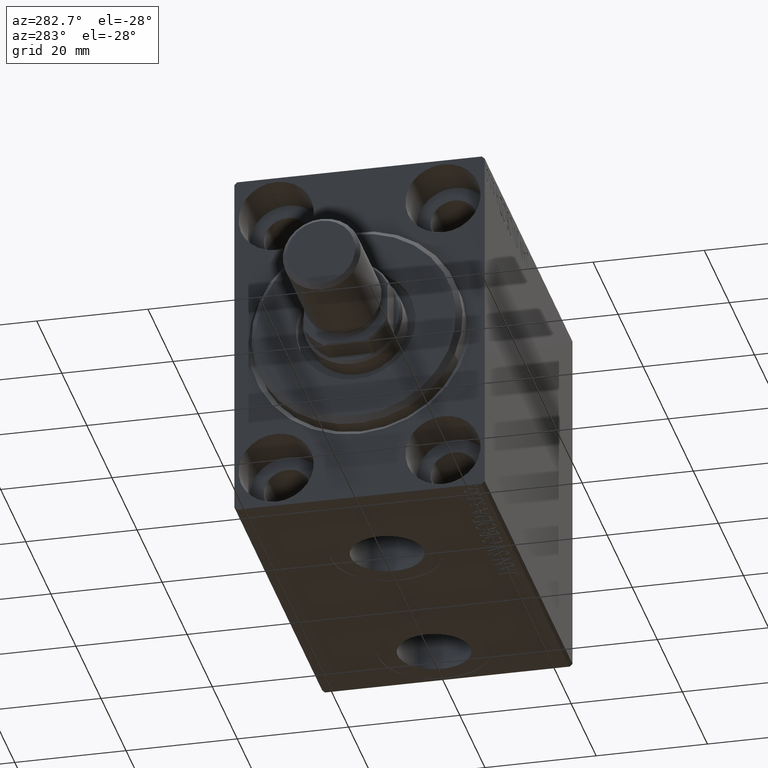
[diagram: clean part render]
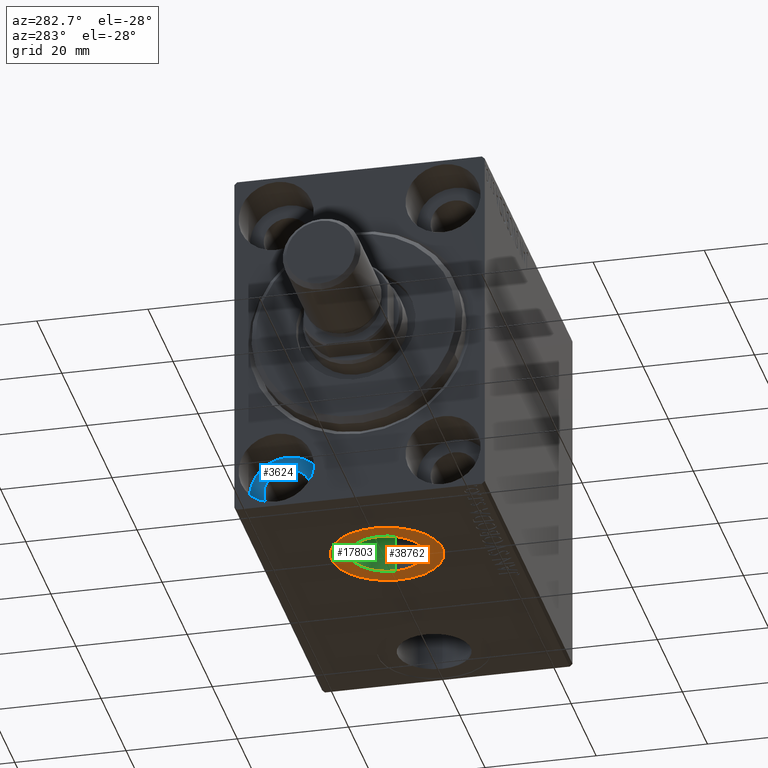
[diagram: same view with three faces highlighted in distinct colors, each labeled with its STEP entity id]
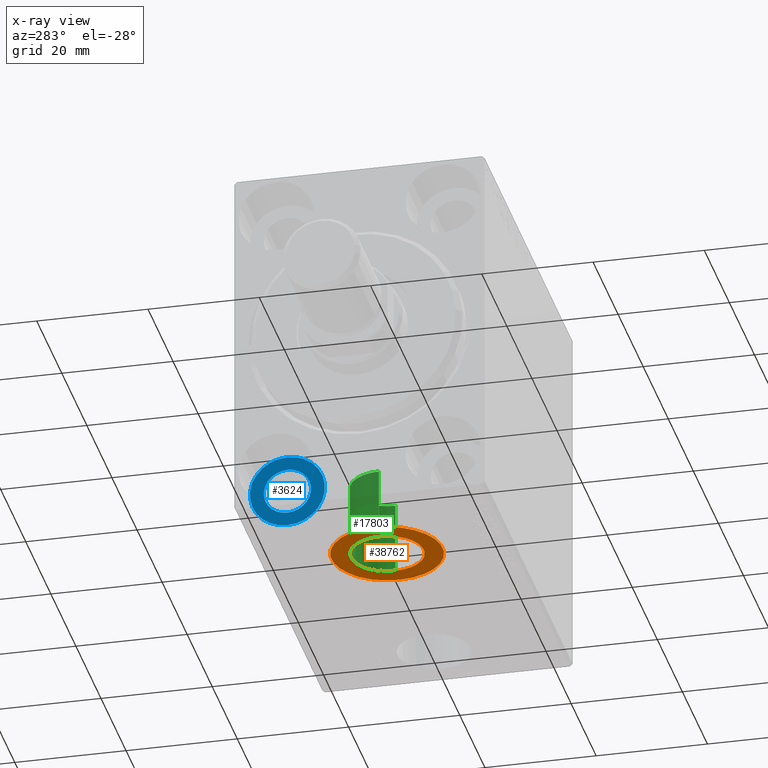
[diagram: x-ray of the same camera — body ghosted, the three highlighted faces saturated]
A machine part, auxiliary view with three faces highlighted in distinct colors.
The next image is the same camera in x-ray (body ghosted, the three faces saturated) — at least one of them is partly hidden behind the body in this view.
Their STEP definitions:

[orange] entity #38762 — the highlighted planar face has unit normal (0, 0, -1).
#2581 = EDGE_CURVE ( 'NONE', #7063, #20359, #16431, .T. ) ;
#6706 = ORIENTED_EDGE ( 'NONE', *, *, #2581, .T. ) ;
#7063 = VERTEX_POINT ( 'NONE', #43556 ) ;
#8046 = DIRECTION ( 'NONE',  ( 0.000000000000000000, 0.000000000000000000, -1.000000000000000000 ) ) ;
#8259 = DIRECTION ( 'NONE',  ( 0.000000000000000000, 0.000000000000000000, -1.000000000000000000 ) ) ;
#8392 = AXIS2_PLACEMENT_3D ( 'NONE', #37199, #17211, #30883 ) ;
#9144 = CIRCLE ( 'NONE', #8392, 6.580000000000002736 ) ;
#9554 = ORIENTED_EDGE ( 'NONE', *, *, #32697, .T. ) ;
#10140 = CARTESIAN_POINT ( 'NONE',  ( 22.00000000000000000, -3.594347949397319039E-15, -32.40000000000000568 ) ) ;
#10377 = ORIENTED_EDGE ( 'NONE', *, *, #29144, .F. ) ;
#10530 = CARTESIAN_POINT ( 'NONE',  ( 15.41999999999999638, -3.594347949397319039E-15, -32.40000000000000568 ) ) ;
#11410 = FACE_OUTER_BOUND ( 'NONE', #34052, .T. ) ;
#14394 = DIRECTION ( 'NONE',  ( 0.000000000000000000, 0.000000000000000000, -1.000000000000000000 ) ) ;
#15242 = VERTEX_POINT ( 'NONE', #29895 ) ;
#16431 = CIRCLE ( 'NONE', #19291, 10.00000000000000000 ) ;
#17211 = DIRECTION ( 'NONE',  ( 0.000000000000000000, 0.000000000000000000, -1.000000000000000000 ) ) ;
#19291 = AXIS2_PLACEMENT_3D ( 'NONE', #39670, #8259, #29120 ) ;
#19759 = AXIS2_PLACEMENT_3D ( 'NONE', #38792, #8046, #21748 ) ;
#20359 = VERTEX_POINT ( 'NONE', #41914 ) ;
#20431 = ORIENTED_EDGE ( 'NONE', *, *, #39252, .F. ) ;
#21718 = EDGE_LOOP ( 'NONE', ( #10377, #20431 ) ) ;
#21748 = DIRECTION ( 'NONE',  ( -1.000000000000000000, 0.000000000000000000, -0.000000000000000000 ) ) ;
#22265 = CARTESIAN_POINT ( 'NONE',  ( 22.00000000000000000, -3.594347949397319039E-15, -32.40000000000000568 ) ) ;
#28080 = DIRECTION ( 'NONE',  ( -1.000000000000000000, 0.000000000000000000, 0.000000000000000000 ) ) ;
#28693 = PLANE ( 'NONE',  #19759 ) ;
#29120 = DIRECTION ( 'NONE',  ( -1.000000000000000000, 0.000000000000000000, 0.000000000000000000 ) ) ;
#29144 = EDGE_CURVE ( 'NONE', #39431, #15242, #9144, .T. ) ;
#29644 = DIRECTION ( 'NONE',  ( 0.000000000000000000, 0.000000000000000000, -1.000000000000000000 ) ) ;
#29874 = DIRECTION ( 'NONE',  ( -1.000000000000000000, 0.000000000000000000, 0.000000000000000000 ) ) ;
#29895 = CARTESIAN_POINT ( 'NONE',  ( 28.58000000000000185, -2.788530355558360786E-15, -32.40000000000000568 ) ) ;
#30883 = DIRECTION ( 'NONE',  ( -1.000000000000000000, 0.000000000000000000, 0.000000000000000000 ) ) ;
#31226 = AXIS2_PLACEMENT_3D ( 'NONE', #10140, #14394, #28080 ) ;
#32697 = EDGE_CURVE ( 'NONE', #20359, #7063, #35370, .T. ) ;
#34052 = EDGE_LOOP ( 'NONE', ( #9554, #6706 ) ) ;
#35370 = CIRCLE ( 'NONE', #36825, 10.00000000000000000 ) ;
#36825 = AXIS2_PLACEMENT_3D ( 'NONE', #22265, #29644, #29874 ) ;
#37199 = CARTESIAN_POINT ( 'NONE',  ( 22.00000000000000000, -3.594347949397319039E-15, -32.40000000000000568 ) ) ;
#38762 = ADVANCED_FACE ( 'NONE', ( #42172, #11410 ), #28693, .T. ) ;
#38792 = CARTESIAN_POINT ( 'NONE',  ( 0.000000000000000000, 0.000000000000000000, -32.40000000000000568 ) ) ;
#39252 = EDGE_CURVE ( 'NONE', #15242, #39431, #41272, .T. ) ;
#39431 = VERTEX_POINT ( 'NONE', #10530 ) ;
#39670 = CARTESIAN_POINT ( 'NONE',  ( 22.00000000000000000, -3.594347949397319039E-15, -32.40000000000000568 ) ) ;
#41272 = CIRCLE ( 'NONE', #31226, 6.580000000000002736 ) ;
#41914 = CARTESIAN_POINT ( 'NONE',  ( 11.99999999999999822, -3.594347949397319039E-15, -32.40000000000000568 ) ) ;
#42172 = FACE_BOUND ( 'NONE', #21718, .T. ) ;
#43556 = CARTESIAN_POINT ( 'NONE',  ( 32.00000000000000000, -2.369701150249966375E-15, -32.40000000000000568 ) ) ;

[blue] entity #3624 — the highlighted planar face has unit normal (-1, 0, 0).
#1368 = VERTEX_POINT ( 'NONE', #33020 ) ;
#3624 = ADVANCED_FACE ( 'NONE', ( #27445, #30596 ), #24303, .T. ) ;
#3641 = CARTESIAN_POINT ( 'NONE',  ( 9.000000000000000000, 14.99999999999999645, -25.00000000000000000 ) ) ;
#4342 = CARTESIAN_POINT ( 'NONE',  ( 9.000000000000001776, 14.99999999999999645, -25.00000000000000000 ) ) ;
#4412 = AXIS2_PLACEMENT_3D ( 'NONE', #31813, #18360, #32039 ) ;
#6125 = DIRECTION ( 'NONE',  ( -1.000000000000000000, 0.000000000000000000, 0.000000000000000000 ) ) ;
#8235 = VERTEX_POINT ( 'NONE', #34967 ) ;
#9556 = CIRCLE ( 'NONE', #21776, 4.249999999999996447 ) ;
#10890 = EDGE_CURVE ( 'NONE', #11805, #1368, #12320, .T. ) ;
#11805 = VERTEX_POINT ( 'NONE', #23551 ) ;
#12320 = CIRCLE ( 'NONE', #4412, 6.749999999999999112 ) ;
#12453 = CIRCLE ( 'NONE', #33918, 4.249999999999996447 ) ;
#13831 = AXIS2_PLACEMENT_3D ( 'NONE', #39814, #6125, #32836 ) ;
#14208 = DIRECTION ( 'NONE',  ( -1.000000000000000000, 0.000000000000000000, 0.000000000000000000 ) ) ;
#17559 = VERTEX_POINT ( 'NONE', #25462 ) ;
#17613 = DIRECTION ( 'NONE',  ( 0.000000000000000000, 0.000000000000000000, 1.000000000000000000 ) ) ;
#18360 = DIRECTION ( 'NONE',  ( -1.000000000000000000, 0.000000000000000000, 0.000000000000000000 ) ) ;
#18672 = ORIENTED_EDGE ( 'NONE', *, *, #10890, .T. ) ;
#20930 = CARTESIAN_POINT ( 'NONE',  ( 9.000000000000001776, 14.99999999999999645, -25.00000000000000000 ) ) ;
#21776 = AXIS2_PLACEMENT_3D ( 'NONE', #20930, #27431, #31456 ) ;
#23551 = CARTESIAN_POINT ( 'NONE',  ( 9.000000000000000000, 14.99999999999999645, -31.75000000000000000 ) ) ;
#24272 = ORIENTED_EDGE ( 'NONE', *, *, #32879, .F. ) ;
#24303 = PLANE ( 'NONE',  #25046 ) ;
#24712 = ORIENTED_EDGE ( 'NONE', *, *, #33040, .F. ) ;
#25046 = AXIS2_PLACEMENT_3D ( 'NONE', #3641, #14208, #44302 ) ;
#25462 = CARTESIAN_POINT ( 'NONE',  ( 9.000000000000001776, 14.99999999999999645, -29.25000000000000000 ) ) ;
#27431 = DIRECTION ( 'NONE',  ( -1.000000000000000000, 0.000000000000000000, 0.000000000000000000 ) ) ;
#27445 = FACE_BOUND ( 'NONE', #40784, .T. ) ;
#27926 = DIRECTION ( 'NONE',  ( -1.000000000000000000, 0.000000000000000000, 0.000000000000000000 ) ) ;
#30596 = FACE_OUTER_BOUND ( 'NONE', #34693, .T. ) ;
#31456 = DIRECTION ( 'NONE',  ( 0.000000000000000000, 0.000000000000000000, 1.000000000000000000 ) ) ;
#31813 = CARTESIAN_POINT ( 'NONE',  ( 9.000000000000000000, 14.99999999999999645, -25.00000000000000000 ) ) ;
#32039 = DIRECTION ( 'NONE',  ( 0.000000000000000000, 0.000000000000000000, 1.000000000000000000 ) ) ;
#32388 = EDGE_CURVE ( 'NONE', #1368, #11805, #38182, .T. ) ;
#32836 = DIRECTION ( 'NONE',  ( 0.000000000000000000, 0.000000000000000000, 1.000000000000000000 ) ) ;
#32879 = EDGE_CURVE ( 'NONE', #8235, #17559, #12453, .T. ) ;
#33020 = CARTESIAN_POINT ( 'NONE',  ( 9.000000000000000000, 14.99999999999999645, -18.25000000000000355 ) ) ;
#33040 = EDGE_CURVE ( 'NONE', #17559, #8235, #9556, .T. ) ;
#33918 = AXIS2_PLACEMENT_3D ( 'NONE', #4342, #27926, #17613 ) ;
#34693 = EDGE_LOOP ( 'NONE', ( #44344, #18672 ) ) ;
#34967 = CARTESIAN_POINT ( 'NONE',  ( 9.000000000000001776, 14.99999999999999645, -20.75000000000000355 ) ) ;
#38182 = CIRCLE ( 'NONE', #13831, 6.749999999999999112 ) ;
#39814 = CARTESIAN_POINT ( 'NONE',  ( 9.000000000000000000, 14.99999999999999645, -25.00000000000000000 ) ) ;
#40784 = EDGE_LOOP ( 'NONE', ( #24272, #24712 ) ) ;
#44302 = DIRECTION ( 'NONE',  ( 0.000000000000000000, 0.000000000000000000, 1.000000000000000000 ) ) ;
#44344 = ORIENTED_EDGE ( 'NONE', *, *, #32388, .T. ) ;

[green] entity #17803 — the highlighted cylindrical surface (partial cylindrical patch) has radius 6.58 mm, axis along (-0, -0, -1).
#828 = EDGE_CURVE ( 'NONE', #8626, #39431, #42862, .T. ) ;
#1595 = DIRECTION ( 'NONE',  ( -0.000000000000000000, -0.000000000000000000, -1.000000000000000000 ) ) ;
#3310 = ORIENTED_EDGE ( 'NONE', *, *, #5322, .F. ) ;
#4257 = CIRCLE ( 'NONE', #5724, 6.580000000000002736 ) ;
#5273 = CARTESIAN_POINT ( 'NONE',  ( 28.58000000000000185, -2.788530355558360786E-15, -19.50000000000000355 ) ) ;
#5322 = EDGE_CURVE ( 'NONE', #8626, #6412, #4257, .T. ) ;
#5724 = AXIS2_PLACEMENT_3D ( 'NONE', #16536, #29561, #5996 ) ;
#5996 = DIRECTION ( 'NONE',  ( -1.000000000000000000, 0.000000000000000000, 0.000000000000000000 ) ) ;
#6412 = VERTEX_POINT ( 'NONE', #5273 ) ;
#6632 = DIRECTION ( 'NONE',  ( -0.000000000000000000, -0.000000000000000000, -1.000000000000000000 ) ) ;
#6783 = CARTESIAN_POINT ( 'NONE',  ( 15.41999999999999638, -3.594347949397319039E-15, -19.50000000000000355 ) ) ;
#7875 = VECTOR ( 'NONE', #25127, 1000.000000000000000 ) ;
#8392 = AXIS2_PLACEMENT_3D ( 'NONE', #37199, #17211, #30883 ) ;
#8626 = VERTEX_POINT ( 'NONE', #6783 ) ;
#9144 = CIRCLE ( 'NONE', #8392, 6.580000000000002736 ) ;
#10023 = EDGE_CURVE ( 'NONE', #6412, #15242, #30856, .T. ) ;
#10530 = CARTESIAN_POINT ( 'NONE',  ( 15.41999999999999638, -3.594347949397319039E-15, -32.40000000000000568 ) ) ;
#12101 = CARTESIAN_POINT ( 'NONE',  ( 15.41999999999999638, -3.594347949397319039E-15, -19.50000000000000355 ) ) ;
#15242 = VERTEX_POINT ( 'NONE', #29895 ) ;
#15306 = CARTESIAN_POINT ( 'NONE',  ( 22.00000000000000000, -3.594347949397319039E-15, -19.50000000000000355 ) ) ;
#16536 = CARTESIAN_POINT ( 'NONE',  ( 22.00000000000000000, -3.594347949397319039E-15, -19.50000000000000355 ) ) ;
#17211 = DIRECTION ( 'NONE',  ( 0.000000000000000000, 0.000000000000000000, -1.000000000000000000 ) ) ;
#17400 = AXIS2_PLACEMENT_3D ( 'NONE', #15306, #1595, #28992 ) ;
#17803 = ADVANCED_FACE ( 'NONE', ( #35729 ), #32351, .F. ) ;
#19665 = ORIENTED_EDGE ( 'NONE', *, *, #29144, .T. ) ;
#22657 = ORIENTED_EDGE ( 'NONE', *, *, #828, .T. ) ;
#25127 = DIRECTION ( 'NONE',  ( -0.000000000000000000, -0.000000000000000000, -1.000000000000000000 ) ) ;
#26556 = EDGE_LOOP ( 'NONE', ( #34440, #3310, #22657, #19665 ) ) ;
#28992 = DIRECTION ( 'NONE',  ( -1.000000000000000000, 0.000000000000000000, 0.000000000000000000 ) ) ;
#29144 = EDGE_CURVE ( 'NONE', #39431, #15242, #9144, .T. ) ;
#29561 = DIRECTION ( 'NONE',  ( 0.000000000000000000, 0.000000000000000000, -1.000000000000000000 ) ) ;
#29895 = CARTESIAN_POINT ( 'NONE',  ( 28.58000000000000185, -2.788530355558360786E-15, -32.40000000000000568 ) ) ;
#30856 = LINE ( 'NONE', #34446, #31656 ) ;
#30883 = DIRECTION ( 'NONE',  ( -1.000000000000000000, 0.000000000000000000, 0.000000000000000000 ) ) ;
#31656 = VECTOR ( 'NONE', #6632, 1000.000000000000000 ) ;
#32351 = CYLINDRICAL_SURFACE ( 'NONE', #17400, 6.580000000000002736 ) ;
#34440 = ORIENTED_EDGE ( 'NONE', *, *, #10023, .F. ) ;
#34446 = CARTESIAN_POINT ( 'NONE',  ( 28.58000000000000185, -2.788530355558360786E-15, -19.50000000000000355 ) ) ;
#35729 = FACE_OUTER_BOUND ( 'NONE', #26556, .T. ) ;
#37199 = CARTESIAN_POINT ( 'NONE',  ( 22.00000000000000000, -3.594347949397319039E-15, -32.40000000000000568 ) ) ;
#39431 = VERTEX_POINT ( 'NONE', #10530 ) ;
#42862 = LINE ( 'NONE', #12101, #7875 ) ;